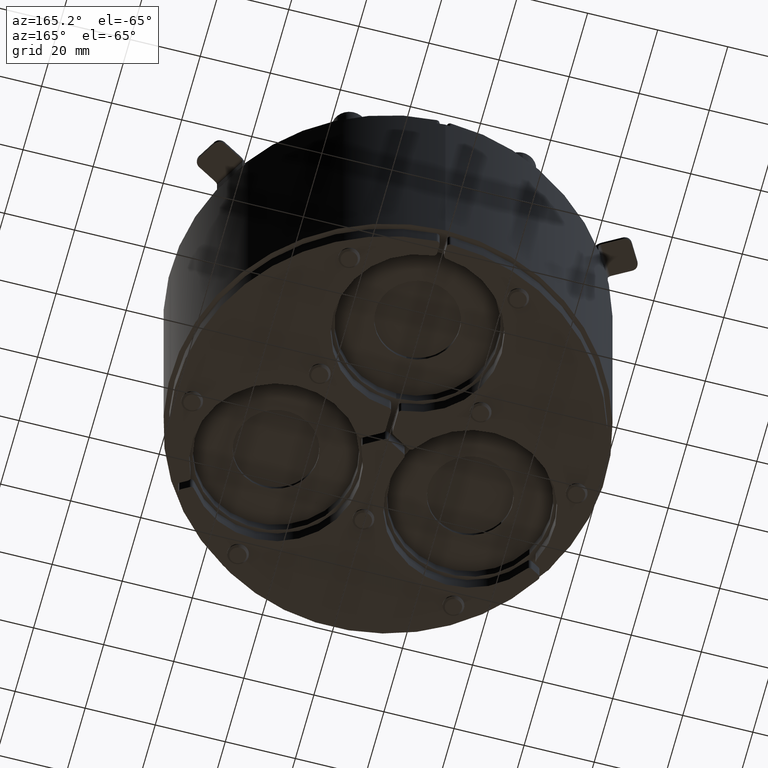
[diagram: clean part render]
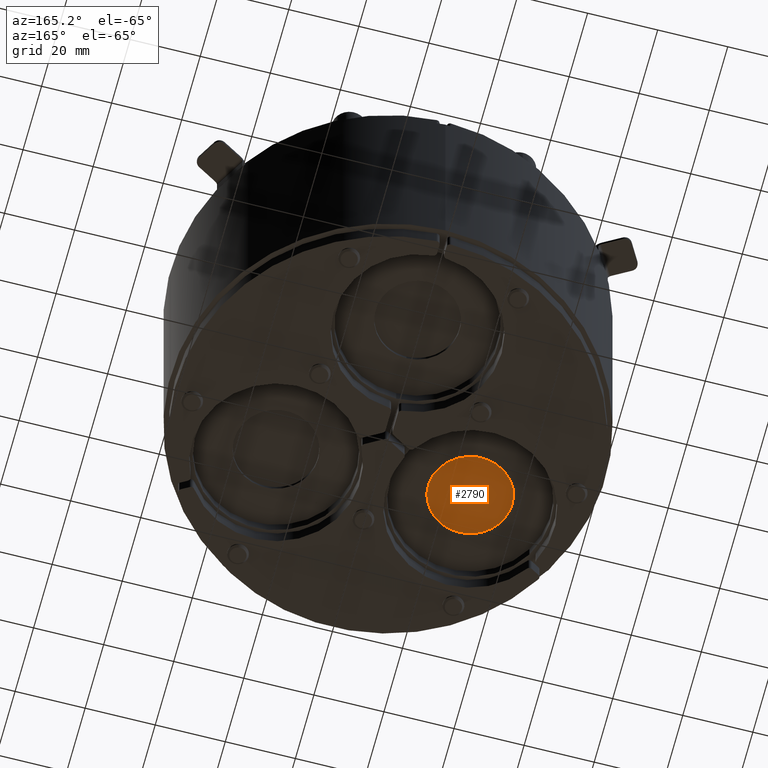
[diagram: same view with one face highlighted and labeled with its STEP entity id]
A machine part, auxiliary view. The second image highlights one B-rep face of the part: STEP entity #2790.
In plain terms, the highlighted planar face has unit normal (0, 0, 1).
Its self-contained STEP definition (entity closure, byte-faithful):
#307=PLANE('',#3322);
#470=FACE_OUTER_BOUND('',#655,.T.);
#655=EDGE_LOOP('',(#2564));
#1233=CIRCLE('',#3320,12.);
#1469=VERTEX_POINT('',#5051);
#1834=EDGE_CURVE('',#1469,#1469,#1233,.T.);
#2564=ORIENTED_EDGE('',*,*,#1834,.T.);
#2790=ADVANCED_FACE('',(#470),#307,.F.);
#3320=AXIS2_PLACEMENT_3D('',#5053,#4190,#4191);
#3322=AXIS2_PLACEMENT_3D('',#5055,#4194,#4195);
#4190=DIRECTION('center_axis',(0.,-1.,0.));
#4191=DIRECTION('ref_axis',(1.,0.,0.));
#4194=DIRECTION('center_axis',(0.,1.,0.));
#4195=DIRECTION('ref_axis',(0.,0.,1.));
#5051=CARTESIAN_POINT('',(-12.,0.,1.46957615897682E-15));
#5053=CARTESIAN_POINT('Origin',(0.,0.,0.));
#5055=CARTESIAN_POINT('Origin',(7.39255249150933E-16,0.,-3.08395284618099E-16));